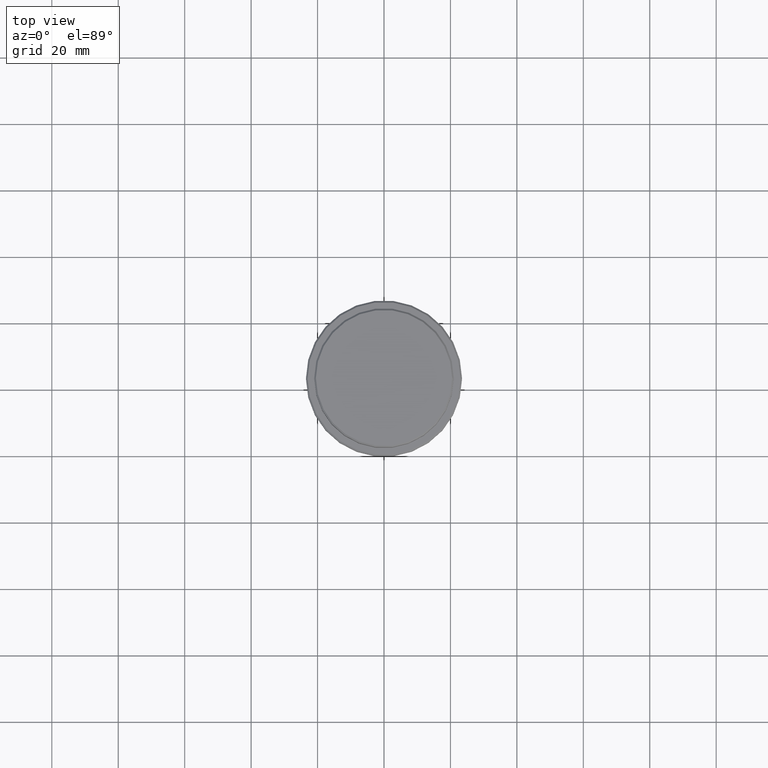
[diagram: clean part render]
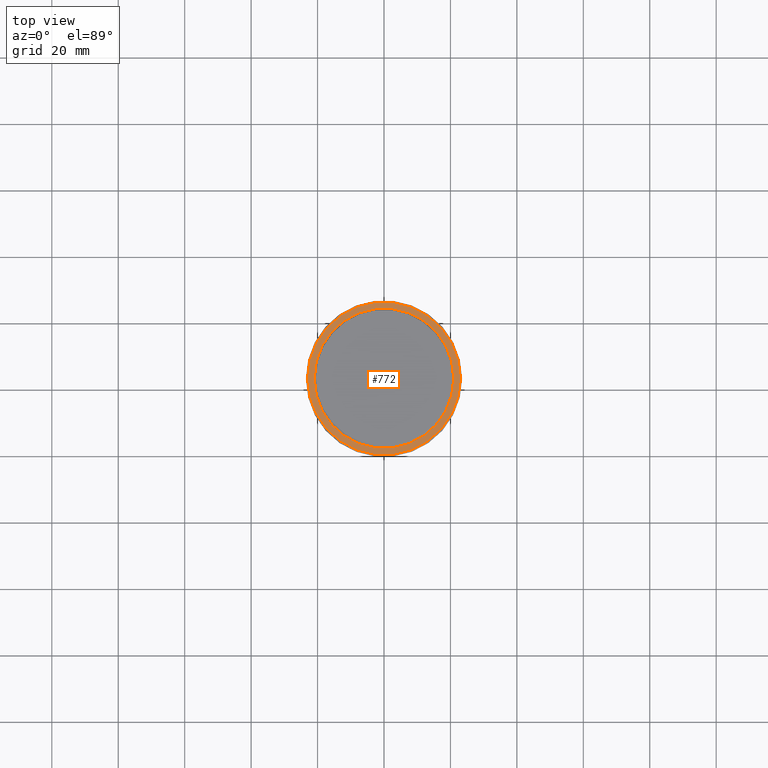
[diagram: same view with one face highlighted and labeled with its STEP entity id]
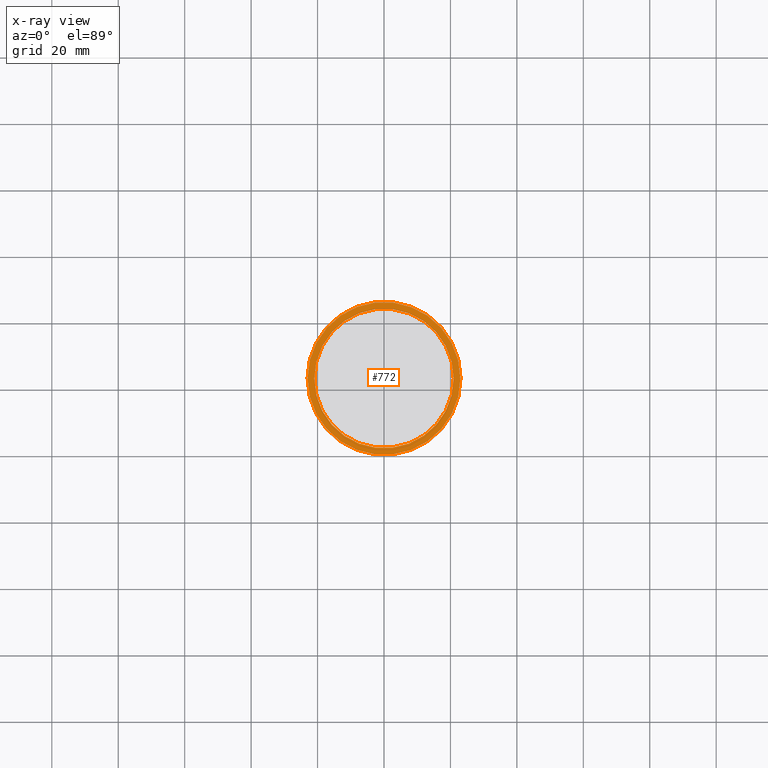
[diagram: x-ray of the same camera — body ghosted, the highlighted face saturated]
A machine part, top view. The second image highlights one B-rep face of the part: STEP entity #772.
The next image is the same camera in x-ray: the body ghosted, the highlighted face saturated — about 0% of this face is hidden behind the body in this view.
In plain terms, the highlighted planar face has unit normal (0, -0, 1).
Its self-contained STEP definition (entity closure, byte-faithful):
#130 = VERTEX_POINT ( 'NONE', #364 ) ;
#132 = DIRECTION ( 'NONE',  ( 0.000000000000000000, 0.000000000000000000, -1.000000000000000000 ) ) ;
#139 = VERTEX_POINT ( 'NONE', #1223 ) ;
#145 = AXIS2_PLACEMENT_3D ( 'NONE', #527, #173, #491 ) ;
#152 = FACE_BOUND ( 'NONE', #603, .T. ) ;
#162 = CARTESIAN_POINT ( 'NONE',  ( 23.00000000000002487, 2.847303808017597717E-15, -9.000000000000001776 ) ) ;
#168 = CARTESIAN_POINT ( 'NONE',  ( -20.99999999999999289, 2.571758278209440872E-15, -9.000000000000001776 ) ) ;
#173 = DIRECTION ( 'NONE',  ( 0.000000000000000000, 0.000000000000000000, -1.000000000000000000 ) ) ;
#203 = DIRECTION ( 'NONE',  ( 1.000000000000000000, 0.000000000000000000, 0.000000000000000000 ) ) ;
#214 = CIRCLE ( 'NONE', #566, 23.00000000000002487 ) ;
#235 = CIRCLE ( 'NONE', #1130, 20.99999999999999289 ) ;
#358 = ORIENTED_EDGE ( 'NONE', *, *, #744, .T. ) ;
#364 = CARTESIAN_POINT ( 'NONE',  ( 20.99999999999999289, 0.000000000000000000, -9.000000000000001776 ) ) ;
#385 = DIRECTION ( 'NONE',  ( 1.000000000000000000, 0.000000000000000000, 0.000000000000000000 ) ) ;
#415 = EDGE_LOOP ( 'NONE', ( #358, #1375 ) ) ;
#416 = CARTESIAN_POINT ( 'NONE',  ( 0.000000000000000000, 20.49999999999999645, -9.000000000000001776 ) ) ;
#491 = DIRECTION ( 'NONE',  ( 1.000000000000000000, 0.000000000000000000, 0.000000000000000000 ) ) ;
#502 = DIRECTION ( 'NONE',  ( -0.000000000000000000, -0.000000000000000000, 1.000000000000000000 ) ) ;
#527 = CARTESIAN_POINT ( 'NONE',  ( 0.000000000000000000, 0.000000000000000000, -9.000000000000001776 ) ) ;
#566 = AXIS2_PLACEMENT_3D ( 'NONE', #1210, #1325, #203 ) ;
#603 = EDGE_LOOP ( 'NONE', ( #1073, #729 ) ) ;
#604 = DIRECTION ( 'NONE',  ( 0.000000000000000000, -0.000000000000000000, 1.000000000000000000 ) ) ;
#642 = EDGE_CURVE ( 'NONE', #130, #1234, #235, .T. ) ;
#673 = CARTESIAN_POINT ( 'NONE',  ( 0.000000000000000000, 0.000000000000000000, -9.000000000000001776 ) ) ;
#694 = CIRCLE ( 'NONE', #145, 20.99999999999999289 ) ;
#717 = AXIS2_PLACEMENT_3D ( 'NONE', #416, #604, #385 ) ;
#729 = ORIENTED_EDGE ( 'NONE', *, *, #751, .T. ) ;
#744 = EDGE_CURVE ( 'NONE', #139, #1067, #1216, .T. ) ;
#751 = EDGE_CURVE ( 'NONE', #1234, #130, #694, .T. ) ;
#772 = ADVANCED_FACE ( 'NONE', ( #861, #152 ), #916, .T. ) ;
#861 = FACE_OUTER_BOUND ( 'NONE', #415, .T. ) ;
#916 = PLANE ( 'NONE',  #717 ) ;
#917 = EDGE_CURVE ( 'NONE', #1067, #139, #214, .T. ) ;
#961 = CARTESIAN_POINT ( 'NONE',  ( 0.000000000000000000, 0.000000000000000000, -9.000000000000001776 ) ) ;
#966 = AXIS2_PLACEMENT_3D ( 'NONE', #961, #502, #1026 ) ;
#1026 = DIRECTION ( 'NONE',  ( 1.000000000000000000, 0.000000000000000000, 0.000000000000000000 ) ) ;
#1067 = VERTEX_POINT ( 'NONE', #162 ) ;
#1073 = ORIENTED_EDGE ( 'NONE', *, *, #642, .T. ) ;
#1114 = DIRECTION ( 'NONE',  ( 1.000000000000000000, 0.000000000000000000, 0.000000000000000000 ) ) ;
#1130 = AXIS2_PLACEMENT_3D ( 'NONE', #673, #132, #1114 ) ;
#1210 = CARTESIAN_POINT ( 'NONE',  ( 0.000000000000000000, 0.000000000000000000, -9.000000000000001776 ) ) ;
#1216 = CIRCLE ( 'NONE', #966, 23.00000000000002487 ) ;
#1223 = CARTESIAN_POINT ( 'NONE',  ( -23.00000000000002487, 0.000000000000000000, -9.000000000000001776 ) ) ;
#1234 = VERTEX_POINT ( 'NONE', #168 ) ;
#1325 = DIRECTION ( 'NONE',  ( -0.000000000000000000, -0.000000000000000000, 1.000000000000000000 ) ) ;
#1375 = ORIENTED_EDGE ( 'NONE', *, *, #917, .T. ) ;